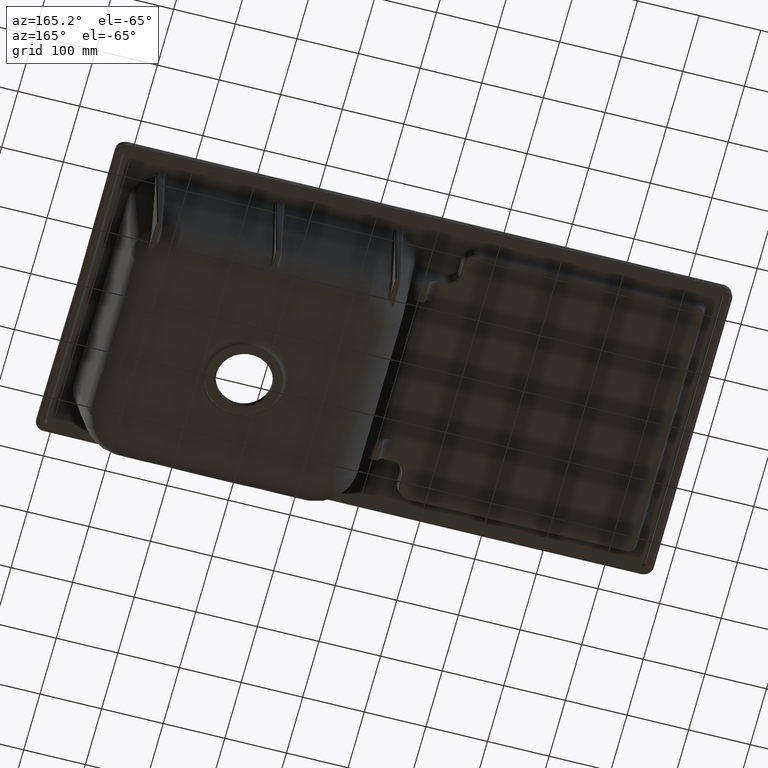
[diagram: clean part render]
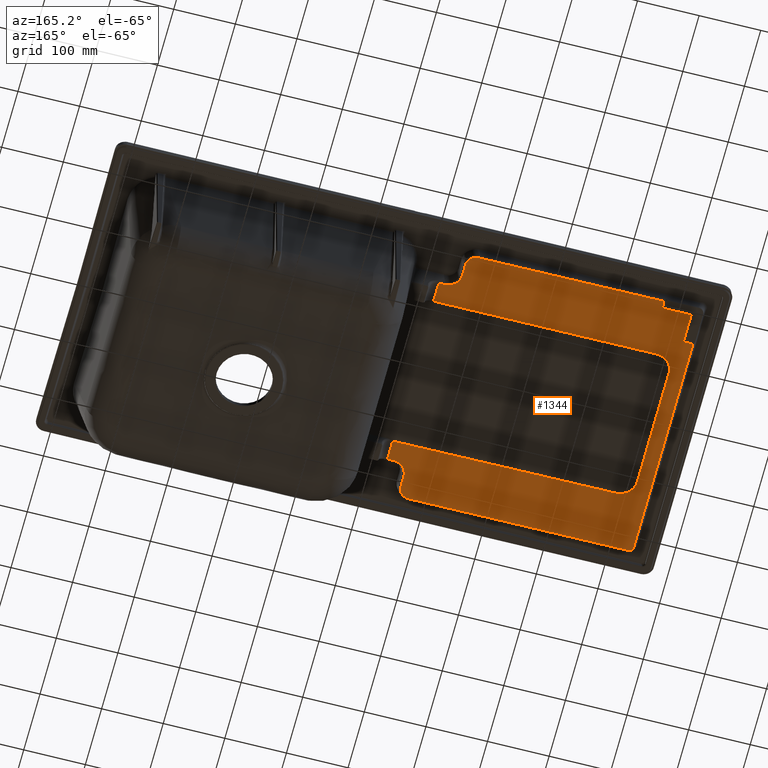
[diagram: same view with one face highlighted and labeled with its STEP entity id]
A machine part, auxiliary view. The second image highlights one B-rep face of the part: STEP entity #1344.
In plain terms, the highlighted planar face has unit normal (0.0105, -0, 0.9999).
Its self-contained STEP definition (entity closure, byte-faithful):
#393=PLANE('',#6956);
#854=LINE('',#18529,#1022);
#855=LINE('',#18587,#1023);
#1022=VECTOR('',#7604,1.);
#1023=VECTOR('',#7611,1.);
#1344=ADVANCED_FACE('',(#1871),#393,.F.);
#1871=FACE_OUTER_BOUND('',#2321,.T.);
#2321=EDGE_LOOP('',(#3543,#3544,#3545,#3546,#3547,#3548,#3549,#3550,#3551,
#3552,#3553,#3554,#3555,#3556,#3557,#3558,#3559,#3560,#3561,#3562,#3563,
#3564,#3565,#3566,#3567));
#3543=ORIENTED_EDGE('',*,*,#5762,.F.);
#3544=ORIENTED_EDGE('',*,*,#5760,.T.);
#3545=ORIENTED_EDGE('',*,*,#5238,.T.);
#3546=ORIENTED_EDGE('',*,*,#5237,.T.);
#3547=ORIENTED_EDGE('',*,*,#5236,.T.);
#3548=ORIENTED_EDGE('',*,*,#5235,.T.);
#3549=ORIENTED_EDGE('',*,*,#5234,.T.);
#3550=ORIENTED_EDGE('',*,*,#5246,.T.);
#3551=ORIENTED_EDGE('',*,*,#5657,.T.);
#3552=ORIENTED_EDGE('',*,*,#5750,.T.);
#3553=ORIENTED_EDGE('',*,*,#5746,.T.);
#3554=ORIENTED_EDGE('',*,*,#5743,.T.);
#3555=ORIENTED_EDGE('',*,*,#5740,.T.);
#3556=ORIENTED_EDGE('',*,*,#5737,.T.);
#3557=ORIENTED_EDGE('',*,*,#5734,.T.);
#3558=ORIENTED_EDGE('',*,*,#5731,.T.);
#3559=ORIENTED_EDGE('',*,*,#5763,.F.);
#3560=ORIENTED_EDGE('',*,*,#5229,.T.);
#3561=ORIENTED_EDGE('',*,*,#5228,.T.);
#3562=ORIENTED_EDGE('',*,*,#5227,.T.);
#3563=ORIENTED_EDGE('',*,*,#5226,.T.);
#3564=ORIENTED_EDGE('',*,*,#5764,.F.);
#3565=ORIENTED_EDGE('',*,*,#5765,.F.);
#3566=ORIENTED_EDGE('',*,*,#5766,.F.);
#3567=ORIENTED_EDGE('',*,*,#5767,.F.);
#4635=VERTEX_POINT('',#9182);
#4636=VERTEX_POINT('',#9187);
#4637=VERTEX_POINT('',#9194);
#4638=VERTEX_POINT('',#9205);
#4639=VERTEX_POINT('',#9214);
#4643=VERTEX_POINT('',#9246);
#4644=VERTEX_POINT('',#9247);
#4645=VERTEX_POINT('',#9252);
#4646=VERTEX_POINT('',#9257);
#4647=VERTEX_POINT('',#9268);
#4648=VERTEX_POINT('',#9279);
#4655=VERTEX_POINT('',#9346);
#4890=VERTEX_POINT('',#16072);
#4932=VERTEX_POINT('',#18515);
#4934=VERTEX_POINT('',#18528);
#4936=VERTEX_POINT('',#18533);
#4938=VERTEX_POINT('',#18576);
#4940=VERTEX_POINT('',#18591);
#4942=VERTEX_POINT('',#18652);
#4944=VERTEX_POINT('',#18668);
#4953=VERTEX_POINT('',#18839);
#4954=VERTEX_POINT('',#18859);
#4955=VERTEX_POINT('',#18880);
#4956=VERTEX_POINT('',#18889);
#4957=VERTEX_POINT('',#18896);
#5226=EDGE_CURVE('',#4636,#4635,#6257,.T.);
#5227=EDGE_CURVE('',#4637,#4636,#6258,.T.);
#5228=EDGE_CURVE('',#4638,#4637,#6259,.T.);
#5229=EDGE_CURVE('',#4639,#4638,#6260,.T.);
#5234=EDGE_CURVE('',#4643,#4644,#6262,.T.);
#5235=EDGE_CURVE('',#4645,#4643,#6263,.T.);
#5236=EDGE_CURVE('',#4646,#4645,#6264,.T.);
#5237=EDGE_CURVE('',#4647,#4646,#6265,.T.);
#5238=EDGE_CURVE('',#4648,#4647,#6266,.T.);
#5246=EDGE_CURVE('',#4644,#4655,#6274,.T.);
#5657=EDGE_CURVE('',#4655,#4890,#6495,.T.);
#5731=EDGE_CURVE('',#4932,#4934,#854,.T.);
#5734=EDGE_CURVE('',#4936,#4932,#6547,.T.);
#5737=EDGE_CURVE('',#4938,#4936,#855,.T.);
#5740=EDGE_CURVE('',#4940,#4938,#6550,.T.);
#5743=EDGE_CURVE('',#4942,#4940,#6552,.T.);
#5746=EDGE_CURVE('',#4944,#4942,#6554,.T.);
#5750=EDGE_CURVE('',#4890,#4944,#6556,.T.);
#5760=EDGE_CURVE('',#4953,#4648,#6559,.T.);
#5762=EDGE_CURVE('',#4953,#4954,#6560,.T.);
#5763=EDGE_CURVE('',#4639,#4934,#6561,.T.);
#5764=EDGE_CURVE('',#4955,#4635,#6562,.T.);
#5765=EDGE_CURVE('',#4956,#4955,#6563,.T.);
#5766=EDGE_CURVE('',#4957,#4956,#6564,.T.);
#5767=EDGE_CURVE('',#4954,#4957,#6565,.T.);
#6257=B_SPLINE_CURVE_WITH_KNOTS('',3,(#9183,#9184,#9185,#9186),
 .UNSPECIFIED.,.F.,.F.,(4,4),(0.,1.),.UNSPECIFIED.);
#6258=B_SPLINE_CURVE_WITH_KNOTS('',3,(#9188,#9189,#9190,#9191,#9192,#9193),
 .UNSPECIFIED.,.F.,.F.,(4,2,4),(0.,0.967373885841943,1.),.UNSPECIFIED.);
#6259=B_SPLINE_CURVE_WITH_KNOTS('',3,(#9195,#9196,#9197,#9198,#9199,#9200,
#9201,#9202,#9203,#9204),.UNSPECIFIED.,.F.,.F.,(4,2,2,2,4),(0.,0.0302714257648687,
0.155188496620207,0.654856780161124,1.),.UNSPECIFIED.);
#6260=B_SPLINE_CURVE_WITH_KNOTS('',3,(#9206,#9207,#9208,#9209,#9210,#9211,
#9212,#9213),.UNSPECIFIED.,.F.,.F.,(4,2,2,4),(0.,0.483359750272175,0.817996571718292,
1.),.UNSPECIFIED.);
#6262=B_SPLINE_CURVE_WITH_KNOTS('',3,(#9236,#9237,#9238,#9239,#9240,#9241,
#9242,#9243,#9244,#9245),.UNSPECIFIED.,.F.,.F.,(4,2,2,2,4),(0.,0.25,0.5,
0.75,1.),.UNSPECIFIED.);
#6263=B_SPLINE_CURVE_WITH_KNOTS('',3,(#9248,#9249,#9250,#9251),
 .UNSPECIFIED.,.F.,.F.,(4,4),(0.,1.),.UNSPECIFIED.);
#6264=B_SPLINE_CURVE_WITH_KNOTS('',3,(#9253,#9254,#9255,#9256),
 .UNSPECIFIED.,.F.,.F.,(4,4),(0.,1.),.UNSPECIFIED.);
#6265=B_SPLINE_CURVE_WITH_KNOTS('',3,(#9258,#9259,#9260,#9261,#9262,#9263,
#9264,#9265,#9266,#9267),.UNSPECIFIED.,.F.,.F.,(4,2,2,2,4),(0.,0.25,0.5,
0.75,1.),.UNSPECIFIED.);
#6266=B_SPLINE_CURVE_WITH_KNOTS('',3,(#9269,#9270,#9271,#9272,#9273,#9274,
#9275,#9276,#9277,#9278),.UNSPECIFIED.,.F.,.F.,(4,2,2,2,4),(0.,0.001818422318701,
0.068091667028033,0.333184645865361,1.),.UNSPECIFIED.);
#6274=B_SPLINE_CURVE_WITH_KNOTS('',3,(#9347,#9348,#9349,#9350,#9351,#9352,
#9353,#9354,#9355,#9356),.UNSPECIFIED.,.F.,.F.,(4,2,2,2,4),(0.,0.0165683111773069,
0.082841555886534,0.347934534723442,1.),.UNSPECIFIED.);
#6495=B_SPLINE_CURVE_WITH_KNOTS('',3,(#16073,#16074,#16075,#16076),
 .UNSPECIFIED.,.F.,.F.,(4,4),(0.,1.),.UNSPECIFIED.);
#6547=B_SPLINE_CURVE_WITH_KNOTS('',3,(#18550,#18551,#18552,#18553,#18554,
#18555),.UNSPECIFIED.,.F.,.F.,(4,2,4),(0.,0.5,1.),.UNSPECIFIED.);
#6550=B_SPLINE_CURVE_WITH_KNOTS('',3,(#18608,#18609,#18610,#18611,#18612,
#18613),.UNSPECIFIED.,.F.,.F.,(4,2,4),(0.,0.5,1.),.UNSPECIFIED.);
#6552=B_SPLINE_CURVE_WITH_KNOTS('',3,(#18659,#18660,#18661,#18662,#18663,
#18664),.UNSPECIFIED.,.F.,.F.,(4,2,4),(0.,0.32108178339409,1.),
 .UNSPECIFIED.);
#6554=B_SPLINE_CURVE_WITH_KNOTS('',3,(#18677,#18678,#18679,#18680,#18681,
#18682,#18683,#18684,#18685,#18686,#18687,#18688,#18689,#18690,#18691,#18692,
#18693,#18694,#18695,#18696,#18697,#18698,#18699,#18700,#18701,#18702,#18703,
#18704,#18705,#18706),.UNSPECIFIED.,.F.,.F.,(4,2,1,1,2,2,1,1,2,2,1,1,1,
2,2,1,2,2,4),(0.,0.249999999999995,0.312499999999994,0.343749999999993,
0.359374999999993,0.374999999999993,0.437499999999994,0.468749999999993,
0.484374999999993,0.499999999999992,0.624999999999986,0.687499999999983,
0.718749999999982,0.734374999999983,0.749999999999984,0.812499999999986,
0.843749999999988,0.874999999999991,1.),.UNSPECIFIED.);
#6556=B_SPLINE_CURVE_WITH_KNOTS('',3,(#18754,#18755,#18756,#18757,#18758,
#18759),.UNSPECIFIED.,.F.,.F.,(4,2,4),(0.,0.067645442406474,1.),
 .UNSPECIFIED.);
#6559=B_SPLINE_CURVE_WITH_KNOTS('',3,(#18835,#18836,#18837,#18838),
 .UNSPECIFIED.,.F.,.F.,(4,4),(0.,1.),.UNSPECIFIED.);
#6560=B_SPLINE_CURVE_WITH_KNOTS('',3,(#18853,#18854,#18855,#18856,#18857,
#18858),.UNSPECIFIED.,.F.,.F.,(4,2,4),(0.,0.383658740088908,1.),
 .UNSPECIFIED.);
#6561=B_SPLINE_CURVE_WITH_KNOTS('',3,(#18860,#18861,#18862,#18863,#18864,
#18865,#18866,#18867,#18868,#18869),.UNSPECIFIED.,.F.,.F.,(4,2,2,2,4),(0.,
0.190443437110945,0.807248437407368,0.961449687481474,1.),.UNSPECIFIED.);
#6562=B_SPLINE_CURVE_WITH_KNOTS('',3,(#18870,#18871,#18872,#18873,#18874,
#18875,#18876,#18877,#18878,#18879),.UNSPECIFIED.,.F.,.F.,(4,2,2,2,4),(0.,
0.58133465605498,0.900317775251186,0.980063555050237,1.),.UNSPECIFIED.);
#6563=B_SPLINE_CURVE_WITH_KNOTS('',3,(#18881,#18882,#18883,#18884,#18885,
#18886,#18887,#18888),.UNSPECIFIED.,.F.,.F.,(4,2,2,4),(0.,0.25,0.5,1.),
 .UNSPECIFIED.);
#6564=B_SPLINE_CURVE_WITH_KNOTS('',3,(#18890,#18891,#18892,#18893,#18894,
#18895),.UNSPECIFIED.,.F.,.F.,(4,2,4),(0.,0.678918216605904,1.),
 .UNSPECIFIED.);
#6565=B_SPLINE_CURVE_WITH_KNOTS('',3,(#18897,#18898,#18899,#18900,#18901,
#18902,#18903,#18904,#18905,#18906,#18907,#18908,#18909,#18910,#18911,#18912,
#18913,#18914,#18915,#18916,#18917,#18918,#18919,#18920,#18921,#18922,#18923,
#18924,#18925,#18926,#18927,#18928),.UNSPECIFIED.,.F.,.F.,(4,2,2,2,2,2,
2,1,2,2,2,2,2,1,2,2,4),(0.,0.125000000000007,0.18750000000001,0.250000000000013,
0.281250000000015,0.312500000000017,0.375000000000021,0.406250000000023,
0.421875000000024,0.437500000000025,0.500000000000023,0.56250000000002,
0.578125000000019,0.593750000000018,0.625000000000016,0.750000000000011,
1.),.UNSPECIFIED.);
#6956=AXIS2_PLACEMENT_3D('',#18929,#7644,#7645);
#7604=DIRECTION('',(-0.000992429683871325,0.999999507487532,1.03930792671964E-5));
#7611=DIRECTION('',(-0.999945102507245,-0.000365682734981848,0.0104717834160493));
#7644=DIRECTION('',(0.0104717841162443,-1.57030561051213E-16,0.999945169365512));
#7645=DIRECTION('',(-1.4432899320127E-15,-1.,-1.38777878078145E-16));
#9182=CARTESIAN_POINT('',(-397.659959225784,215.868744837231,-33.5355296331663));
#9183=CARTESIAN_POINT('',(-397.659959225784,203.950895551672,-33.5355296331658));
#9184=CARTESIAN_POINT('',(-397.659959225784,207.923511980192,-33.5355296331658));
#9185=CARTESIAN_POINT('',(-397.659959225784,211.896128408711,-33.5355296331659));
#9186=CARTESIAN_POINT('',(-397.659959225783,215.868744837231,-33.5355296331659));
#9187=CARTESIAN_POINT('',(-397.659959225784,203.950895551672,-33.5355296331658));
#9188=CARTESIAN_POINT('',(-444.802173404163,203.922395661107,-33.0418394741835));
#9189=CARTESIAN_POINT('',(-429.600788656817,203.925591518218,-33.2010338222527));
#9190=CARTESIAN_POINT('',(-414.399408464506,203.9402450374,-33.3602281226201));
#9191=CARTESIAN_POINT('',(-398.685337380467,203.950243152389,-33.5247915057141));
#9192=CARTESIAN_POINT('',(-398.172648303125,203.950569352031,-33.53016056944));
#9193=CARTESIAN_POINT('',(-397.659959225783,203.950895551672,-33.5355296331658));
#9194=CARTESIAN_POINT('',(-444.802173404163,203.922395661107,-33.0418394741835));
#9195=CARTESIAN_POINT('',(-444.81048048004,155.890530512083,-33.041752479508));
#9196=CARTESIAN_POINT('',(-444.810398058585,156.375194859715,-33.041753342655));
#9197=CARTESIAN_POINT('',(-444.810315637131,156.859859207346,-33.041754205802));
#9198=CARTESIAN_POINT('',(-444.809893098025,159.344523526055,-33.0417586307829));
#9199=CARTESIAN_POINT('',(-444.809552980401,161.344523497132,-33.0417621926166));
#9200=CARTESIAN_POINT('',(-444.807852392437,171.344523353473,-33.0417800017832));
#9201=CARTESIAN_POINT('',(-444.806406290176,179.344523234348,-33.0417951458843));
#9202=CARTESIAN_POINT('',(-444.804878500036,192.870480752738,-33.0418111454501));
#9203=CARTESIAN_POINT('',(-444.804640564224,198.396438608194,-33.0418136371992));
#9204=CARTESIAN_POINT('',(-444.802173404163,203.922395661106,-33.0418394741835));
#9205=CARTESIAN_POINT('',(-444.810480480041,155.890530512083,-33.041752479508));
#9206=CARTESIAN_POINT('',(-460.342658166157,155.643611576048,-32.8790939492535));
#9207=CARTESIAN_POINT('',(-457.840114990309,155.683395134467,-32.905301478108));
#9208=CARTESIAN_POINT('',(-455.337571814461,155.723178692887,-32.9315090069625));
#9209=CARTESIAN_POINT('',(-451.102482448273,155.790504973944,-32.9758603803321));
#9210=CARTESIAN_POINT('',(-449.369936257934,155.81804769658,-32.9940042248473));
#9211=CARTESIAN_POINT('',(-446.695086871743,155.860570450172,-33.0220162060776));
#9212=CARTESIAN_POINT('',(-445.752783675892,155.875550481127,-33.0318843427928));
#9213=CARTESIAN_POINT('',(-444.810480480041,155.890530512083,-33.041752479508));
#9214=CARTESIAN_POINT('',(-460.342658166535,155.643611576532,-32.8790939492499));
#9236=CARTESIAN_POINT('',(-436.823176198158,-96.9804875295234,-33.1253983919792));
#9237=CARTESIAN_POINT('',(-436.826813351735,-100.658943555463,-33.1253603024037));
#9238=CARTESIAN_POINT('',(-436.135805677247,-104.20563049958,-33.1325967823744));
#9239=CARTESIAN_POINT('',(-433.415160250501,-110.910616524318,-33.1610883561512));
#9240=CARTESIAN_POINT('',(-431.385304990937,-113.987982306221,-33.1823457277717));
#9241=CARTESIAN_POINT('',(-426.32021197814,-119.094288406202,-33.2353891967375));
#9242=CARTESIAN_POINT('',(-423.242391369267,-121.154986901284,-33.2676212370054));
#9243=CARTESIAN_POINT('',(-416.593251636671,-123.906514700434,-33.3372534108201));
#9244=CARTESIAN_POINT('',(-412.968877266628,-124.628379976104,-33.3752091579174));
#9245=CARTESIAN_POINT('',(-409.32672696493,-124.635326588598,-33.4133510609404));
#9246=CARTESIAN_POINT('',(-436.823176198159,-96.9804875295234,-33.1253983919776));
#9247=CARTESIAN_POINT('',(-409.326726964917,-124.635326582043,-33.4133510609388));
#9248=CARTESIAN_POINT('',(-436.727281733417,0.00292663694321562,-33.1264026331751));
#9249=CARTESIAN_POINT('',(-436.759246554998,-32.3248780852123,-33.1260678861098));
#9250=CARTESIAN_POINT('',(-436.791211376579,-64.6526828073679,-33.1257331390445));
#9251=CARTESIAN_POINT('',(-436.82317619816,-96.9804875295234,-33.1253983919792));
#9252=CARTESIAN_POINT('',(-436.727284627192,0.00292663598934576,-33.126402602869));
#9253=CARTESIAN_POINT('',(-436.823176198161,96.9804875295234,-33.1253983919792));
#9254=CARTESIAN_POINT('',(-436.791213305763,64.6546338980274,-33.1257331188414));
#9255=CARTESIAN_POINT('',(-436.759250413365,32.3287802665314,-33.1260678457036));
#9256=CARTESIAN_POINT('',(-436.727287520966,0.00292663503546388,-33.1264025725658));
#9257=CARTESIAN_POINT('',(-436.82317619816,96.9804875295234,-33.1253983919779));
#9258=CARTESIAN_POINT('',(-409.326726964356,124.635326588599,-33.4133510609464));
#9259=CARTESIAN_POINT('',(-413.004325357357,124.628312366627,-33.3748379328094));
#9260=CARTESIAN_POINT('',(-416.552078239933,123.919616750316,-33.3376845933841));
#9261=CARTESIAN_POINT('',(-423.235413315929,121.161782461872,-33.2676943136803));
#9262=CARTESIAN_POINT('',(-426.302880475895,119.107012421095,-33.2355706984393));
#9263=CARTESIAN_POINT('',(-431.369183436334,114.008952280267,-33.1825145584682));
#9264=CARTESIAN_POINT('',(-433.409758975821,110.914336420764,-33.161144920235));
#9265=CARTESIAN_POINT('',(-436.121540755505,104.250308281109,-33.1327461697463));
#9266=CARTESIAN_POINT('',(-436.826778017359,100.623207932612,-33.1253606724379));
#9267=CARTESIAN_POINT('',(-436.823176198158,96.9804875295235,-33.1253983919792));
#9268=CARTESIAN_POINT('',(-409.326726964344,124.635326582044,-33.4133510609449));
#9269=CARTESIAN_POINT('',(-47.2101514960194,125.325985470727,-37.2055655936906));
#9270=CARTESIAN_POINT('',(-47.4296451169538,125.325566834206,-37.2032669778427));
#9271=CARTESIAN_POINT('',(-47.6491387378882,125.325148197685,-37.2009683619949));
#9272=CARTESIAN_POINT('',(-55.8681791652612,125.309472159029,-37.114895625574));
#9273=CARTESIAN_POINT('',(-63.8677259716998,125.294214756892,-37.031121505001));
#9274=CARTESIAN_POINT('',(-103.865460003893,125.21792774621,-36.6122509021362));
#9275=CARTESIAN_POINT('',(-135.863647229647,125.156898137665,-36.2771544198442));
#9276=CARTESIAN_POINT('',(-248.350131958374,124.942354542391,-35.0991556453497));
#9277=CARTESIAN_POINT('',(-328.838429461346,124.788840555663,-34.256253353147));
#9278=CARTESIAN_POINT('',(-409.326726964319,124.635326568934,-33.4133510609445));
#9279=CARTESIAN_POINT('',(-47.2101514960199,125.325985470727,-37.2055655936909));
#9346=CARTESIAN_POINT('',(-47.2101514953078,-125.325985470409,-37.2055655936983));
#9347=CARTESIAN_POINT('',(-409.326726964892,-124.635326568933,-33.4133510609385));
#9348=CARTESIAN_POINT('',(-407.326840263283,-124.639140919468,-33.4342945910818));
#9349=CARTESIAN_POINT('',(-405.326953561673,-124.642955270002,-33.4552381212251));
#9350=CARTESIAN_POINT('',(-395.327520053625,-124.662027022672,-33.5599557719413));
#9351=CARTESIAN_POINT('',(-387.327973247186,-124.677284424809,-33.6437298925143));
#9352=CARTESIAN_POINT('',(-347.330239214993,-124.75357143549,-34.0626004953792));
#9353=CARTESIAN_POINT('',(-315.332051989238,-124.814601044036,-34.3976969776712));
#9354=CARTESIAN_POINT('',(-204.625960340996,-125.025748925296,-35.5570508378724));
#9355=CARTESIAN_POINT('',(-125.918055918507,-125.175867198011,-36.3813082157817));
#9356=CARTESIAN_POINT('',(-47.2101514960192,-125.325985470727,-37.2055655936909));
#16072=CARTESIAN_POINT('',(-47.2101514960199,-157.488592699496,-37.205565593691));
#16073=CARTESIAN_POINT('',(-47.210151496016,-125.325985470731,-37.2055655936909));
#16074=CARTESIAN_POINT('',(-47.210151496016,-136.046854546986,-37.205565593691));
#16075=CARTESIAN_POINT('',(-47.210151496016,-146.767723623241,-37.2055655936911));
#16076=CARTESIAN_POINT('',(-47.2101514960159,-157.488592699497,-37.2055655936912));
#18515=CARTESIAN_POINT('',(-460.289768539302,-208.936657588551,-32.8796478283784));
#18528=CARTESIAN_POINT('',(-460.497123484099,0.00292663395766081,-32.877474308737));
#18529=CARTESIAN_POINT('',(-460.39344751313,-104.46686547195,-32.8785620650129));
#18533=CARTESIAN_POINT('',(-453.211830934278,-215.889060312878,-32.9537705271623));
#18550=CARTESIAN_POINT('',(-453.211830934278,-215.889060312872,-32.9537705271622));
#18551=CARTESIAN_POINT('',(-455.052620450833,-215.889733494772,-32.9344931197489));
#18552=CARTESIAN_POINT('',(-456.894406511397,-215.145787847663,-32.9152052761697));
#18553=CARTESIAN_POINT('',(-459.501233107208,-212.604984210956,-32.8879056539743));
#18554=CARTESIAN_POINT('',(-460.287937750651,-210.781410702384,-32.8796670010543));
#18555=CARTESIAN_POINT('',(-460.289768539302,-208.936657588551,-32.8796478283795));
#18576=CARTESIAN_POINT('',(-96.7201161312992,-215.758690290661,-36.6870795035059));
#18587=CARTESIAN_POINT('',(-274.965973532789,-215.823875301769,-34.8204250153336));
#18591=CARTESIAN_POINT('',(-79.5941907223188,-198.861734506936,-36.866428330991));
#18608=CARTESIAN_POINT('',(-79.5941907223189,-198.861734506936,-36.8664283309924));
#18609=CARTESIAN_POINT('',(-79.5986103114758,-203.331511163749,-36.8663820474711));
#18610=CARTESIAN_POINT('',(-81.4888272570875,-207.75707422387,-36.8465870183098));
#18611=CARTESIAN_POINT('',(-87.8185176179623,-213.957532897782,-36.7803002327815));
#18612=CARTESIAN_POINT('',(-92.2319071206557,-215.757048940015,-36.7340816364935));
#18613=CARTESIAN_POINT('',(-96.7201161312993,-215.758690290667,-36.6870795035086));
#18652=CARTESIAN_POINT('',(-79.5757137227865,-180.174915830253,-36.8666218287506));
#18659=CARTESIAN_POINT('',(-79.5757137227864,-180.174915830253,-36.8666218287501));
#18660=CARTESIAN_POINT('',(-79.5776912654403,-182.174914852477,-36.8666011192149));
#18661=CARTESIAN_POINT('',(-79.5796688080942,-184.174913874701,-36.8665804096796));
#18662=CARTESIAN_POINT('',(-79.5858278079384,-190.403853433595,-36.8665159104264));
#18663=CARTESIAN_POINT('',(-79.5900092651286,-194.632793970266,-36.8664721207085));
#18664=CARTESIAN_POINT('',(-79.5941907223188,-198.861734506936,-36.8664283309905));
#18668=CARTESIAN_POINT('',(-56.9444688930675,-157.505977765135,-37.1036243338869));
#18677=CARTESIAN_POINT('',(-56.9444688930675,-157.505977765135,-37.1036243338886));
#18678=CARTESIAN_POINT('',(-59.919583874342,-157.513706890152,-37.0724678637547));
#18679=CARTESIAN_POINT('',(-62.8809040273605,-158.09555826522,-37.0414558580053));
#18680=CARTESIAN_POINT('',(-66.3148258589431,-159.508042920166,-37.0054945981342));
#18681=CARTESIAN_POINT('',(-67.3187904705243,-159.979675130028,-36.9949807209788));
#18682=CARTESIAN_POINT('',(-68.4442116260553,-160.613714631612,-36.9831949073746));
#18683=CARTESIAN_POINT('',(-68.9167055017158,-160.903403401593,-36.9782467822036));
#18684=CARTESIAN_POINT('',(-69.2295170906649,-161.100519816029,-36.9749709071567));
#18685=CARTESIAN_POINT('',(-69.3602596618698,-161.184734907039,-36.9736017241031));
#18686=CARTESIAN_POINT('',(-70.2542222894077,-161.779170782528,-36.9642398271408));
#18687=CARTESIAN_POINT('',(-71.2769099073751,-162.546173966748,-36.9535298759536));
#18688=CARTESIAN_POINT('',(-72.3824272752837,-163.534951248862,-36.9419525019454));
#18689=CARTESIAN_POINT('',(-72.8374451073046,-163.978842991309,-36.9371873921654));
#18690=CARTESIAN_POINT('',(-73.136618034062,-164.279244164076,-36.9340543460761));
#18691=CARTESIAN_POINT('',(-73.3168326672472,-164.466478939768,-36.9321670738625));
#18692=CARTESIAN_POINT('',(-74.3311313324342,-165.545366663778,-36.9215449747948));
#18693=CARTESIAN_POINT('',(-75.5446757673182,-167.091526627394,-36.9088363026327));
#18694=CARTESIAN_POINT('',(-76.7174834836276,-169.083755165249,-36.8965542399843));
#18695=CARTESIAN_POINT('',(-77.2431388106848,-170.12696324592,-36.8910493890453));
#18696=CARTESIAN_POINT('',(-77.4554021227599,-170.584143954438,-36.8888264915826));
#18697=CARTESIAN_POINT('',(-77.5940182102816,-170.891173655913,-36.8873748542449));
#18698=CARTESIAN_POINT('',(-77.648659885899,-171.014806233213,-36.8868026270384));
#18699=CARTESIAN_POINT('',(-78.0468360414573,-171.948611072573,-36.8826327836621));
#18700=CARTESIAN_POINT('',(-78.4637820950965,-173.089441160061,-36.8782663751873));
#18701=CARTESIAN_POINT('',(-78.78943014919,-174.260667667933,-36.8748560720779));
#18702=CARTESIAN_POINT('',(-78.9862404075753,-175.048240099932,-36.8727950045306));
#18703=CARTESIAN_POINT('',(-79.0824597444651,-175.48621030821,-36.8717873611571));
#18704=CARTESIAN_POINT('',(-79.4332510193663,-177.284882127456,-36.86811374923));
#18705=CARTESIAN_POINT('',(-79.5742829271467,-178.727872513521,-36.8666368125568));
#18706=CARTESIAN_POINT('',(-79.5757137227867,-180.174915830253,-36.8666218287522));
#18754=CARTESIAN_POINT('',(-47.2101514960209,-157.488592699496,-37.2055655936912));
#18755=CARTESIAN_POINT('',(-47.4296455649703,-157.488984706315,-37.2032669731515));
#18756=CARTESIAN_POINT('',(-47.6491396339197,-157.489376713134,-37.2009683526119));
#18757=CARTESIAN_POINT('',(-50.8939120996019,-157.495171735014,-37.1669879326769));
#18758=CARTESIAN_POINT('',(-53.9191904963347,-157.500574750075,-37.1353061332816));
#18759=CARTESIAN_POINT('',(-56.9444688930675,-157.505977765135,-37.1036243338863));
#18835=CARTESIAN_POINT('',(-47.2101514960243,157.48859269949,-37.2055655936908));
#18836=CARTESIAN_POINT('',(-47.2101514960243,146.767723623235,-37.2055655936907));
#18837=CARTESIAN_POINT('',(-47.2101514960243,136.046854546981,-37.2055655936906));
#18838=CARTESIAN_POINT('',(-47.2101514960243,125.325985470727,-37.2055655936906));
#18839=CARTESIAN_POINT('',(-47.2101514960217,157.488592699495,-37.2055655936908));
#18853=CARTESIAN_POINT('',(-47.210151496021,157.488592699496,-37.2055655936908));
#18854=CARTESIAN_POINT('',(-48.4550368120798,157.490816010289,-37.1925287085909));
#18855=CARTESIAN_POINT('',(-49.6999221281386,157.493039321083,-37.179491823491));
#18856=CARTESIAN_POINT('',(-52.9446945938207,157.498834342962,-37.1455114035561));
#18857=CARTESIAN_POINT('',(-54.9445817434441,157.502406054049,-37.1245678687211));
#18858=CARTESIAN_POINT('',(-56.9444688930674,157.505977765136,-37.1036243338861));
#18859=CARTESIAN_POINT('',(-56.9444688930673,157.505977765136,-37.1036243338867));
#18860=CARTESIAN_POINT('',(-460.342658166157,155.643611576047,-32.8790939492534));
#18861=CARTESIAN_POINT('',(-460.352463623376,145.763362578135,-32.8789912629918));
#18862=CARTESIAN_POINT('',(-460.362269080595,135.883113580224,-32.8788885767303));
#18863=CARTESIAN_POINT('',(-460.403832287698,94.0028803427109,-32.8784533119323));
#18864=CARTESIAN_POINT('',(-460.435590037582,62.0028961031099,-32.878120733396));
#18865=CARTESIAN_POINT('',(-460.475287224937,22.0029158036087,-32.8777050102256));
#18866=CARTESIAN_POINT('',(-460.483226662408,14.0029197437084,-32.8776218655915));
#18867=CARTESIAN_POINT('',(-460.493150959246,4.00292466883316,-32.8775179347989));
#18868=CARTESIAN_POINT('',(-460.495135818614,2.0029256538581,-32.8774971486404));
#18869=CARTESIAN_POINT('',(-460.497120677982,0.00292663888304567,-32.8774763624819));
#18870=CARTESIAN_POINT('',(-96.7201161312991,215.758690290667,-36.6870795035068));
#18871=CARTESIAN_POINT('',(-155.03570285749,215.780016464658,-36.0763777835353));
#18872=CARTESIAN_POINT('',(-213.35128958368,215.80134263865,-35.4656760635637));
#18873=CARTESIAN_POINT('',(-303.665119590103,215.834370660156,-34.5198772742775));
#18874=CARTESIAN_POINT('',(-335.663362870335,215.846072507671,-34.1847802049629));
#18875=CARTESIAN_POINT('',(-375.661166970624,215.860699817065,-33.7659088683197));
#18876=CARTESIAN_POINT('',(-383.660727790682,215.863625278943,-33.682134600991));
#18877=CARTESIAN_POINT('',(-393.660178815755,215.867282106292,-33.5774167668302));
#18878=CARTESIAN_POINT('',(-395.660069020769,215.868013471761,-33.5564731999981));
#18879=CARTESIAN_POINT('',(-397.659959225784,215.868744837231,-33.5355296331659));
#18880=CARTESIAN_POINT('',(-96.7201161312992,215.758690290667,-36.6870795035068));
#18881=CARTESIAN_POINT('',(-79.5941907223189,198.861734506936,-36.8664283309903));
#18882=CARTESIAN_POINT('',(-79.5964122172418,201.108456045349,-36.8664050666995));
#18883=CARTESIAN_POINT('',(-80.0475838552556,203.31375537935,-36.8616802356414));
#18884=CARTESIAN_POINT('',(-81.7800054373848,207.41882938333,-36.8435376960681));
#18885=CARTESIAN_POINT('',(-83.0615444281213,209.295462601567,-36.8301169605531));
#18886=CARTESIAN_POINT('',(-87.8108538515072,213.95444556814,-36.780380490488));
#18887=CARTESIAN_POINT('',(-92.2284305853472,215.757047668637,-36.7341180440151));
#18888=CARTESIAN_POINT('',(-96.7201161312992,215.758690290667,-36.6870795035068));
#18889=CARTESIAN_POINT('',(-79.5941907223188,198.861734506936,-36.8664283309903));
#18890=CARTESIAN_POINT('',(-79.5757137227864,180.174915830253,-36.8666218287499));
#18891=CARTESIAN_POINT('',(-79.5798951799767,184.403856366924,-36.866578039032));
#18892=CARTESIAN_POINT('',(-79.5840766371669,188.632796903594,-36.866534249314));
#18893=CARTESIAN_POINT('',(-79.5902356370111,194.861736462488,-36.8664697500608));
#18894=CARTESIAN_POINT('',(-79.5922131796649,196.861735484712,-36.8664490405256));
#18895=CARTESIAN_POINT('',(-79.5941907223188,198.861734506936,-36.8664283309903));
#18896=CARTESIAN_POINT('',(-79.5757137227865,180.174915830253,-36.8666218287505));
#18897=CARTESIAN_POINT('',(-56.9444688930672,157.505977765135,-37.1036243338861));
#18898=CARTESIAN_POINT('',(-58.1098423676458,157.508059071253,-37.091420125281));
#18899=CARTESIAN_POINT('',(-59.5676420772364,157.599100601063,-37.0761577389318));
#18900=CARTESIAN_POINT('',(-62.119985764286,158.099822901242,-37.0494027554973));
#18901=CARTESIAN_POINT('',(-63.0823267992804,158.3499890755,-37.0393071136689));
#18902=CARTESIAN_POINT('',(-64.657944526305,158.854152111623,-37.0227825521145));
#18903=CARTESIAN_POINT('',(-65.3353610252374,159.116819544594,-37.0156808871465));
#18904=CARTESIAN_POINT('',(-66.2008926295196,159.487500270083,-37.0066168721078));
#18905=CARTESIAN_POINT('',(-66.4646098410252,159.607385633597,-37.003856980893));
#18906=CARTESIAN_POINT('',(-66.9441991346673,159.834206204612,-36.9988414347679));
#18907=CARTESIAN_POINT('',(-67.3268734194536,160.023389901478,-36.9948408683808));
#18908=CARTESIAN_POINT('',(-68.3055571088034,160.543281564229,-36.9846087101947));
#18909=CARTESIAN_POINT('',(-68.942031432811,160.922094476705,-36.9779545693451));
#18910=CARTESIAN_POINT('',(-69.8672661329147,161.53522724942,-36.9682786944318));
#18911=CARTESIAN_POINT('',(-70.3225141182189,161.853022415055,-36.9635170789965));
#18912=CARTESIAN_POINT('',(-70.7656742242873,162.187023997315,-36.9588800336593));
#18913=CARTESIAN_POINT('',(-71.0583130964039,162.413222592171,-36.95581746524));
#18914=CARTESIAN_POINT('',(-71.1481998341781,162.484897112959,-36.954876563072));
#18915=CARTESIAN_POINT('',(-71.5430189645916,162.801961606018,-36.9507432373373));
#18916=CARTESIAN_POINT('',(-71.9829933661303,163.168229032129,-36.9461355169656));
#18917=CARTESIAN_POINT('',(-73.0555037136453,164.180397252359,-36.9349038043021));
#18918=CARTESIAN_POINT('',(-73.6892139498901,164.828457187811,-36.928267394563));
#18919=CARTESIAN_POINT('',(-74.5478885513707,165.866662551335,-36.9192750020321));
#18920=CARTESIAN_POINT('',(-74.7069312370982,166.067358695896,-36.9176094227054));
#18921=CARTESIAN_POINT('',(-74.9353531263351,166.361951852349,-36.91521725337));
#18922=CARTESIAN_POINT('',(-75.2723875288256,166.80786737216,-36.9116876074197));
#18923=CARTESIAN_POINT('',(-75.5917937771321,167.264830593513,-36.9083425240529));
#18924=CARTESIAN_POINT('',(-76.613605249148,168.808016642582,-36.8976412197596));
#18925=CARTESIAN_POINT('',(-77.3039515818509,170.112862034633,-36.8904111610835));
#18926=CARTESIAN_POINT('',(-78.9933692822637,174.239641580547,-36.872718526632));
#18927=CARTESIAN_POINT('',(-79.5704205081837,177.207370029598,-36.8666772611899));
#18928=CARTESIAN_POINT('',(-79.5757137227865,180.174915830253,-36.8666218287499));
#18929=CARTESIAN_POINT('',(-525.961793108768,336.742434747046,-32.1919068553374));